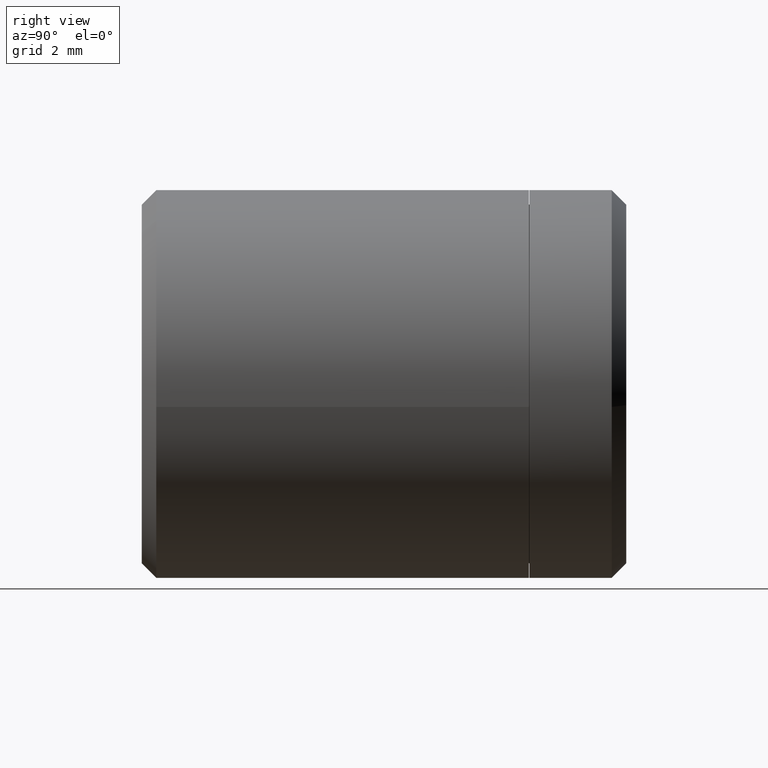
[diagram: clean part render]
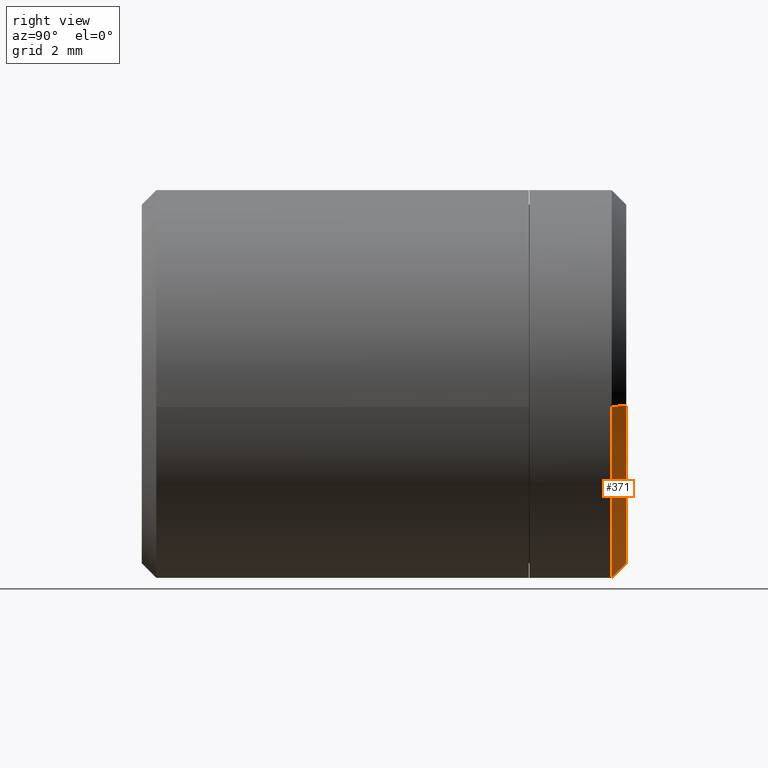
[diagram: same view with one face highlighted and labeled with its STEP entity id]
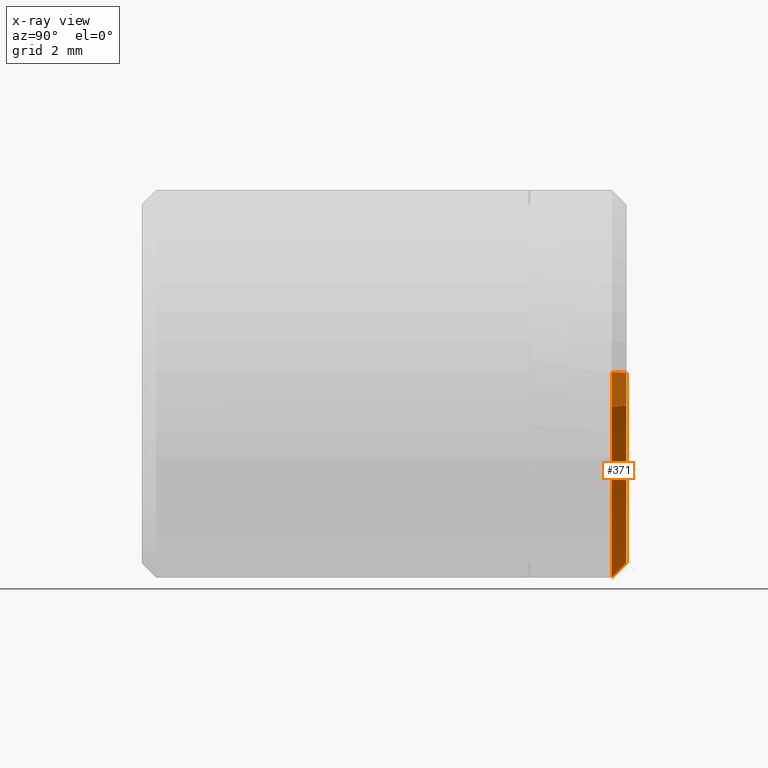
[diagram: x-ray of the same camera — body ghosted, the highlighted face saturated]
A machine part, right view. The second image highlights one B-rep face of the part: STEP entity #371.
The next image is the same camera in x-ray: the body ghosted, the highlighted face saturated — about 17% of this face is hidden behind the body in this view.
In plain terms, the highlighted face is a freeform B-spline surface patch.
Its self-contained STEP definition (entity closure, byte-faithful):
#79=CARTESIAN_POINT('',(-3.992538694620133,9.699996999999630,0.244194127616067));
#80=VERTEX_POINT('',#79);
#161=CARTESIAN_POINT('',(3.972038105454690,9.699996999999648,-0.472136938629806));
#162=VERTEX_POINT('',#161);
#212=CARTESIAN_POINT('',(0.0,9.699997000000000,-4.000000000000003));
#213=VERTEX_POINT('',#212);
#214=CARTESIAN_POINT('',(-3.992538694620133,9.699996999999630,0.244194127616067));
#215=CARTESIAN_POINT('',(-4.000000000000001,9.699996999999998,0.122211053196165));
#216=CARTESIAN_POINT('',(-4.0,9.699997000000000,-2.220446E-015));
#217=CARTESIAN_POINT('',(-4.000000000000000,9.699997000000000,-4.000000000000003));
#218=CARTESIAN_POINT('',(0.0,9.699997000000000,-4.000000000000003));
#226=(BOUNDED_CURVE()B_SPLINE_CURVE(2,(#214,#215,#216,#217,#218),.UNSPECIFIED.,.F.,.U.)B_SPLINE_CURVE_WITH_KNOTS((3,2,3),(0.739332962241812,0.750000000000000,1.0),.UNSPECIFIED.)CURVE()GEOMETRIC_REPRESENTATION_ITEM()RATIONAL_B_SPLINE_CURVE((0.976072041672867,0.987502787903199,1.0,0.707106781186548,1.0))REPRESENTATION_ITEM(''));
#227=EDGE_CURVE('',#80,#213,#226,.T.);
#229=CARTESIAN_POINT('',(0.0,9.699997000000000,-4.000000000000003));
#230=CARTESIAN_POINT('',(3.552698103800557,9.699997000000000,-4.000000000000003));
#231=CARTESIAN_POINT('',(3.972038105454690,9.699996999999648,-0.472136938629806));
#239=(BOUNDED_CURVE()B_SPLINE_CURVE(2,(#229,#230,#231),.UNSPECIFIED.,.F.,.U.)B_SPLINE_CURVE_WITH_KNOTS((3,3),(0.0,0.229562473515412),.UNSPECIFIED.)CURVE()GEOMETRIC_REPRESENTATION_ITEM()RATIONAL_B_SPLINE_CURVE((1.0,0.731050832853172,0.956026754187431))REPRESENTATION_ITEM(''));
#240=EDGE_CURVE('',#213,#162,#239,.T.);
#268=CARTESIAN_POINT('',(3.674134254536043,9.999999999999808,-0.436726550197216));
#269=VERTEX_POINT('',#268);
#270=CARTESIAN_POINT('',(3.674134254536043,9.999999999999808,-0.436726550197216));
#271=CARTESIAN_POINT('',(3.972038105454690,9.699996999999648,-0.472136938629806));
#272=QUASI_UNIFORM_CURVE('',1,(#270,#271),.UNSPECIFIED.,.F.,.U.);
#273=EDGE_CURVE('',#269,#162,#272,.T.);
#292=CARTESIAN_POINT('',(-3.693097756026771,9.999999999998742,0.225879535239909));
#293=VERTEX_POINT('',#292);
#307=CARTESIAN_POINT('',(-3.693097756026771,9.999999999998742,0.225879535239909));
#308=CARTESIAN_POINT('',(-3.992538694620133,9.699996999999630,0.244194127616067));
#309=QUASI_UNIFORM_CURVE('',1,(#307,#308),.UNSPECIFIED.,.F.,.U.);
#310=EDGE_CURVE('',#293,#80,#309,.T.);
#317=CARTESIAN_POINT('',(-3.685611720084538,10.007500074999999,0.225421669657702));
#318=CARTESIAN_POINT('',(-3.911033389742242,10.007500075000001,-3.460190050426836));
#319=CARTESIAN_POINT('',(-0.225421669657704,10.007500074999999,-3.685611720084540));
#320=CARTESIAN_POINT('',(3.255098436342748,10.007500075000003,-3.898489449253969));
#321=CARTESIAN_POINT('',(3.666686658263037,10.007500075000005,-0.435841290484988));
#322=CARTESIAN_POINT('',(-4.000212380527541,9.692309423124998,0.244663470351469));
#323=CARTESIAN_POINT('',(-4.244875850879011,9.692309423124998,-3.755548910176072));
#324=CARTESIAN_POINT('',(-0.244663470351471,9.692309423124998,-4.000212380527543));
#325=CARTESIAN_POINT('',(3.532950851533385,9.692309423124998,-4.231261170372016));
#326=CARTESIAN_POINT('',(3.979671891634456,9.692309423124998,-0.473044329830587));
#334=(BOUNDED_SURFACE()B_SPLINE_SURFACE(2,1,((#317,#322),(#318,#323),(#319,#324),(#320,#325),(#321,#326)),.UNSPECIFIED.,.F.,.F.,.U.)B_SPLINE_SURFACE_WITH_KNOTS((3,2,3),(2,2),(0.0,6.640154107469384,13.014702050639990),(0.0,0.445745408809226),.UNSPECIFIED.)GEOMETRIC_REPRESENTATION_ITEM()RATIONAL_B_SPLINE_SURFACE(((1.0,1.0),(0.707106781186548,0.707106781186548),(1.0,1.0),(0.718822509939086,0.718822509939086),(0.977505800795127,0.977505800795127)))REPRESENTATION_ITEM('')SURFACE());
#335=ORIENTED_EDGE('',*,*,#240,.F.);
#336=ORIENTED_EDGE('',*,*,#227,.F.);
#337=ORIENTED_EDGE('',*,*,#310,.F.);
#338=CARTESIAN_POINT('',(0.0,10.0,-3.699999000000002));
#339=VERTEX_POINT('',#338);
#340=CARTESIAN_POINT('',(-3.693097756026771,9.999999999998742,0.225879535239909));
#341=CARTESIAN_POINT('',(-3.699999000000001,10.0,0.113045193661444));
#342=CARTESIAN_POINT('',(-3.699999000000000,10.0,-2.220446E-015));
#343=CARTESIAN_POINT('',(-3.699999000000000,10.000000000000002,-3.699999000000002));
#344=CARTESIAN_POINT('',(0.0,10.0,-3.699999000000002));
#352=(BOUNDED_CURVE()B_SPLINE_CURVE(2,(#340,#341,#342,#343,#344),.UNSPECIFIED.,.F.,.U.)B_SPLINE_CURVE_WITH_KNOTS((3,2,3),(0.739332962241090,0.750000000000000,1.0),.UNSPECIFIED.)CURVE()GEOMETRIC_REPRESENTATION_ITEM()RATIONAL_B_SPLINE_CURVE((0.976072041671318,0.987502787902352,1.0,0.707106781186548,1.0))REPRESENTATION_ITEM(''));
#353=EDGE_CURVE('',#293,#339,#352,.T.);
#354=ORIENTED_EDGE('',*,*,#353,.T.);
#355=CARTESIAN_POINT('',(0.0,10.0,-3.699999000000002));
#356=CARTESIAN_POINT('',(3.286244857842972,10.0,-3.699999000000003));
#357=CARTESIAN_POINT('',(3.674134254536043,9.999999999999808,-0.436726550197216));
#365=(BOUNDED_CURVE()B_SPLINE_CURVE(2,(#355,#356,#357),.UNSPECIFIED.,.F.,.U.)B_SPLINE_CURVE_WITH_KNOTS((3,3),(0.0,0.229562473515513),.UNSPECIFIED.)CURVE()GEOMETRIC_REPRESENTATION_ITEM()RATIONAL_B_SPLINE_CURVE((1.0,0.731050832853054,0.956026754187629))REPRESENTATION_ITEM(''));
#366=EDGE_CURVE('',#339,#269,#365,.T.);
#367=ORIENTED_EDGE('',*,*,#366,.T.);
#368=ORIENTED_EDGE('',*,*,#273,.T.);
#369=EDGE_LOOP('',(#335,#336,#337,#354,#367,#368));
#370=FACE_OUTER_BOUND('',#369,.T.);
#371=ADVANCED_FACE('',(#370),#334,.T.);